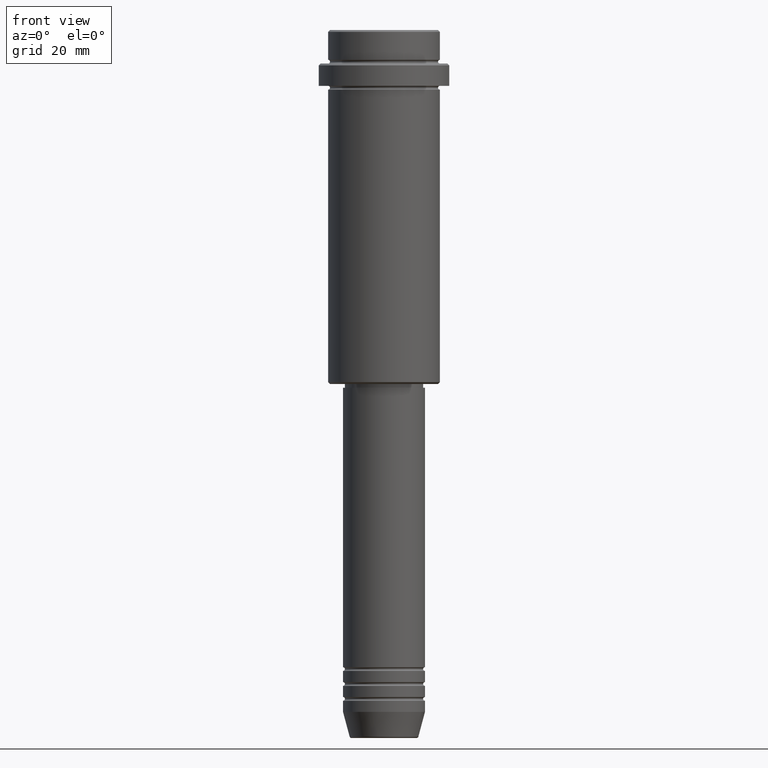
[diagram: clean part render]
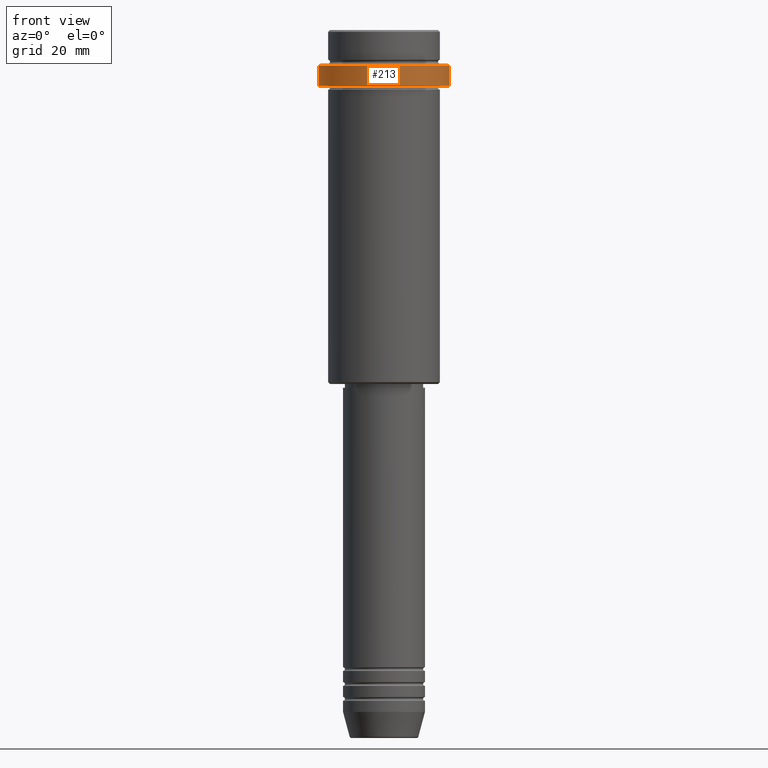
[diagram: same view with one face highlighted and labeled with its STEP entity id]
A machine part, front view. The second image highlights one B-rep face of the part: STEP entity #213.
In plain terms, the highlighted cylindrical surface (partial cylindrical patch) has radius 17.5 mm, axis along (-0, -0, 1).
Its self-contained STEP definition (entity closure, byte-faithful):
#41 = FACE_OUTER_BOUND ( 'NONE', #118, .T. ) ;
#44 = VERTEX_POINT ( 'NONE', #335 ) ;
#118 = EDGE_LOOP ( 'NONE', ( #996, #1048, #346, #549 ) ) ;
#143 = VECTOR ( 'NONE', #1043, 1000.000000000000000 ) ;
#153 = LINE ( 'NONE', #590, #143 ) ;
#160 = DIRECTION ( 'NONE',  ( 0.000000000000000000, 0.000000000000000000, -1.000000000000000000 ) ) ;
#184 = DIRECTION ( 'NONE',  ( 1.000000000000000000, 0.000000000000000000, 0.000000000000000000 ) ) ;
#211 = CARTESIAN_POINT ( 'NONE',  ( -17.50000000000000000, 2.143131898507868248E-15, 0.000000000000000000 ) ) ;
#213 = ADVANCED_FACE ( 'NONE', ( #41 ), #944, .T. ) ;
#245 = DIRECTION ( 'NONE',  ( -0.000000000000000000, -0.000000000000000000, 1.000000000000000000 ) ) ;
#246 = EDGE_CURVE ( 'NONE', #1269, #44, #153, .T. ) ;
#335 = CARTESIAN_POINT ( 'NONE',  ( 17.50000000000000000, 0.000000000000000000, -9.500000000000000000 ) ) ;
#346 = ORIENTED_EDGE ( 'NONE', *, *, #246, .T. ) ;
#391 = VERTEX_POINT ( 'NONE', #729 ) ;
#419 = CARTESIAN_POINT ( 'NONE',  ( -17.50000000000000000, 2.143131898507868248E-15, -9.500000000000000000 ) ) ;
#422 = DIRECTION ( 'NONE',  ( -0.000000000000000000, -0.000000000000000000, 1.000000000000000000 ) ) ;
#442 = DIRECTION ( 'NONE',  ( -0.000000000000000000, -0.000000000000000000, 1.000000000000000000 ) ) ;
#521 = CARTESIAN_POINT ( 'NONE',  ( 0.000000000000000000, 0.000000000000000000, -9.500000000000000000 ) ) ;
#549 = ORIENTED_EDGE ( 'NONE', *, *, #584, .T. ) ;
#584 = EDGE_CURVE ( 'NONE', #44, #633, #680, .T. ) ;
#590 = CARTESIAN_POINT ( 'NONE',  ( 17.50000000000000000, 0.000000000000000000, 0.000000000000000000 ) ) ;
#633 = VERTEX_POINT ( 'NONE', #419 ) ;
#655 = CARTESIAN_POINT ( 'NONE',  ( 17.50000000000000000, 0.000000000000000000, -15.00000000000000000 ) ) ;
#680 = CIRCLE ( 'NONE', #984, 17.50000000000000000 ) ;
#729 = CARTESIAN_POINT ( 'NONE',  ( -17.50000000000000000, 2.143131898507868248E-15, -15.00000000000000000 ) ) ;
#767 = EDGE_CURVE ( 'NONE', #391, #1269, #843, .T. ) ;
#835 = EDGE_CURVE ( 'NONE', #391, #633, #1296, .T. ) ;
#843 = CIRCLE ( 'NONE', #1389, 17.50000000000000000 ) ;
#846 = VECTOR ( 'NONE', #442, 1000.000000000000000 ) ;
#873 = DIRECTION ( 'NONE',  ( 1.000000000000000000, 0.000000000000000000, 0.000000000000000000 ) ) ;
#925 = CARTESIAN_POINT ( 'NONE',  ( 0.000000000000000000, 0.000000000000000000, 0.000000000000000000 ) ) ;
#944 = CYLINDRICAL_SURFACE ( 'NONE', #1166, 17.50000000000000000 ) ;
#984 = AXIS2_PLACEMENT_3D ( 'NONE', #521, #160, #184 ) ;
#996 = ORIENTED_EDGE ( 'NONE', *, *, #835, .F. ) ;
#1043 = DIRECTION ( 'NONE',  ( -0.000000000000000000, -0.000000000000000000, 1.000000000000000000 ) ) ;
#1048 = ORIENTED_EDGE ( 'NONE', *, *, #767, .T. ) ;
#1166 = AXIS2_PLACEMENT_3D ( 'NONE', #925, #245, #1338 ) ;
#1198 = CARTESIAN_POINT ( 'NONE',  ( 0.000000000000000000, 0.000000000000000000, -15.00000000000000000 ) ) ;
#1269 = VERTEX_POINT ( 'NONE', #655 ) ;
#1296 = LINE ( 'NONE', #211, #846 ) ;
#1338 = DIRECTION ( 'NONE',  ( 1.000000000000000000, 0.000000000000000000, 0.000000000000000000 ) ) ;
#1389 = AXIS2_PLACEMENT_3D ( 'NONE', #1198, #422, #873 ) ;